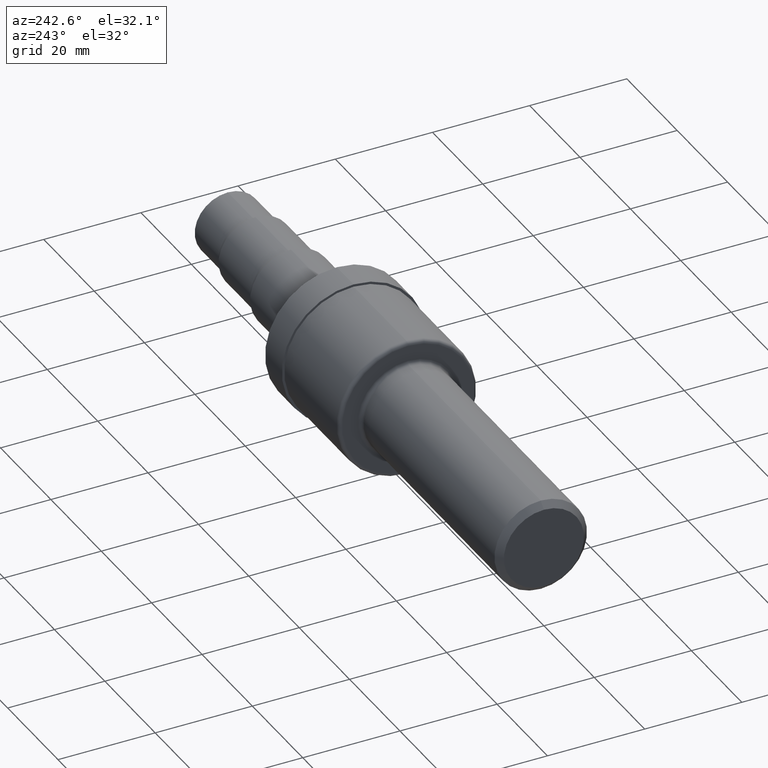
[diagram: clean part render]
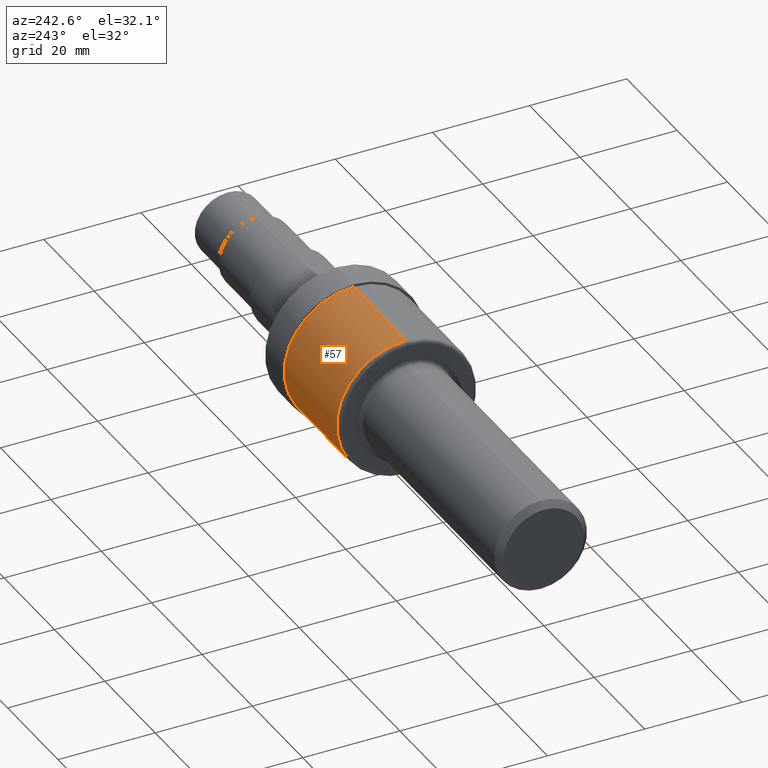
[diagram: same view with one face highlighted and labeled with its STEP entity id]
A machine part, auxiliary view. The second image highlights one B-rep face of the part: STEP entity #57.
In plain terms, the highlighted cylindrical surface (partial cylindrical patch) has radius 14.2875 mm, axis along (-1, -0, -0).
Its self-contained STEP definition (entity closure, byte-faithful):
#10 = CARTESIAN_POINT ( 'NONE',  ( 0.0000000000000000000, 6.888638245203860712E-17, -0.5624999999999998890 ) ) ;
#52 = VECTOR ( 'NONE', #656, 39.37007874015748143 ) ;
#57 = ADVANCED_FACE ( 'NONE', ( #294 ), #517, .T. ) ;
#59 = DIRECTION ( 'NONE',  ( 0.0000000000000000000, 0.0000000000000000000, 1.000000000000000000 ) ) ;
#80 = VERTEX_POINT ( 'NONE', #884 ) ;
#100 = LINE ( 'NONE', #10, #855 ) ;
#142 = AXIS2_PLACEMENT_3D ( 'NONE', #199, #723, #59 ) ;
#147 = VERTEX_POINT ( 'NONE', #264 ) ;
#164 = EDGE_LOOP ( 'NONE', ( #841, #246, #631, #911 ) ) ;
#177 = AXIS2_PLACEMENT_3D ( 'NONE', #214, #283, #180 ) ;
#180 = DIRECTION ( 'NONE',  ( 0.0000000000000000000, 0.0000000000000000000, 1.000000000000000000 ) ) ;
#198 = VERTEX_POINT ( 'NONE', #399 ) ;
#199 = CARTESIAN_POINT ( 'NONE',  ( 2.154999999999999805, 0.0000000000000000000, 0.0000000000000000000 ) ) ;
#214 = CARTESIAN_POINT ( 'NONE',  ( 0.0000000000000000000, 0.0000000000000000000, 0.0000000000000000000 ) ) ;
#232 = DIRECTION ( 'NONE',  ( -1.000000000000000000, -0.0000000000000000000, -0.0000000000000000000 ) ) ;
#246 = ORIENTED_EDGE ( 'NONE', *, *, #759, .T. ) ;
#264 = CARTESIAN_POINT ( 'NONE',  ( 2.154999999999999805, 6.888638245203860712E-17, -0.5624999999999998890 ) ) ;
#283 = DIRECTION ( 'NONE',  ( -1.000000000000000000, -0.0000000000000000000, -0.0000000000000000000 ) ) ;
#294 = FACE_OUTER_BOUND ( 'NONE', #164, .T. ) ;
#399 = CARTESIAN_POINT ( 'NONE',  ( 2.975000000000000533, 0.0000000000000000000, 0.5625000000000000000 ) ) ;
#400 = DIRECTION ( 'NONE',  ( 0.0000000000000000000, 0.0000000000000000000, 1.000000000000000000 ) ) ;
#439 = AXIS2_PLACEMENT_3D ( 'NONE', #475, #232, #400 ) ;
#475 = CARTESIAN_POINT ( 'NONE',  ( 2.975000000000000533, 0.0000000000000000000, 0.0000000000000000000 ) ) ;
#516 = CIRCLE ( 'NONE', #142, 0.5624999999999998890 ) ;
#517 = CYLINDRICAL_SURFACE ( 'NONE', #177, 0.5624999999999998890 ) ;
#557 = CARTESIAN_POINT ( 'NONE',  ( 2.975000000000000533, 6.888638245203861944E-17, -0.5625000000000001110 ) ) ;
#631 = ORIENTED_EDGE ( 'NONE', *, *, #724, .F. ) ;
#656 = DIRECTION ( 'NONE',  ( -1.000000000000000000, -0.0000000000000000000, -0.0000000000000000000 ) ) ;
#698 = EDGE_CURVE ( 'NONE', #198, #906, #730, .T. ) ;
#709 = CARTESIAN_POINT ( 'NONE',  ( 0.0000000000000000000, 0.0000000000000000000, 0.5624999999999998890 ) ) ;
#723 = DIRECTION ( 'NONE',  ( -1.000000000000000000, -0.0000000000000000000, -0.0000000000000000000 ) ) ;
#724 = EDGE_CURVE ( 'NONE', #80, #147, #516, .T. ) ;
#730 = CIRCLE ( 'NONE', #439, 0.5625000000000000000 ) ;
#759 = EDGE_CURVE ( 'NONE', #906, #147, #100, .T. ) ;
#822 = EDGE_CURVE ( 'NONE', #198, #80, #824, .T. ) ;
#824 = LINE ( 'NONE', #709, #52 ) ;
#841 = ORIENTED_EDGE ( 'NONE', *, *, #698, .T. ) ;
#855 = VECTOR ( 'NONE', #870, 39.37007874015748143 ) ;
#870 = DIRECTION ( 'NONE',  ( -1.000000000000000000, -0.0000000000000000000, -0.0000000000000000000 ) ) ;
#884 = CARTESIAN_POINT ( 'NONE',  ( 2.154999999999999805, 0.0000000000000000000, 0.5624999999999998890 ) ) ;
#906 = VERTEX_POINT ( 'NONE', #557 ) ;
#911 = ORIENTED_EDGE ( 'NONE', *, *, #822, .F. ) ;